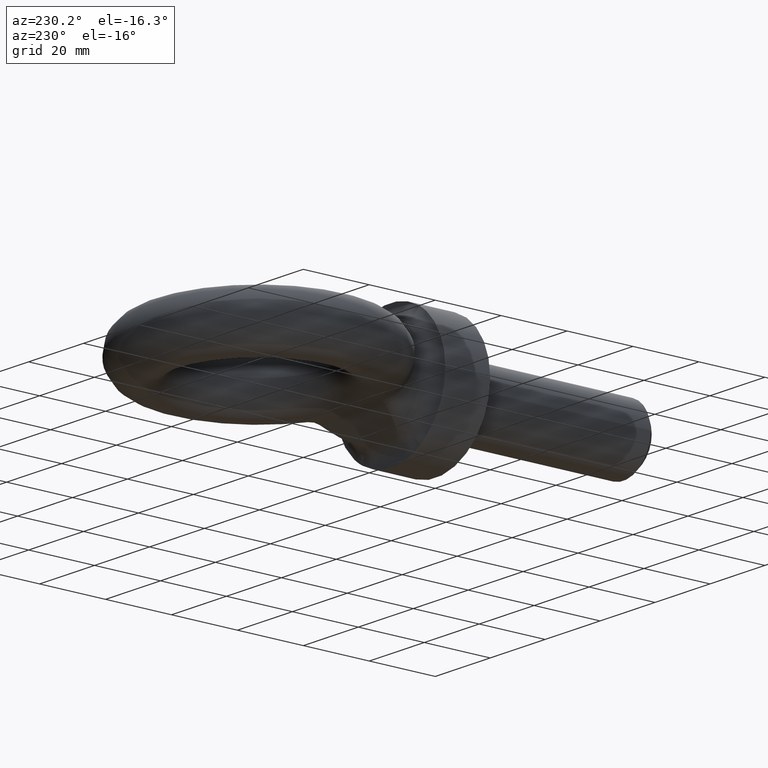
[diagram: clean part render]
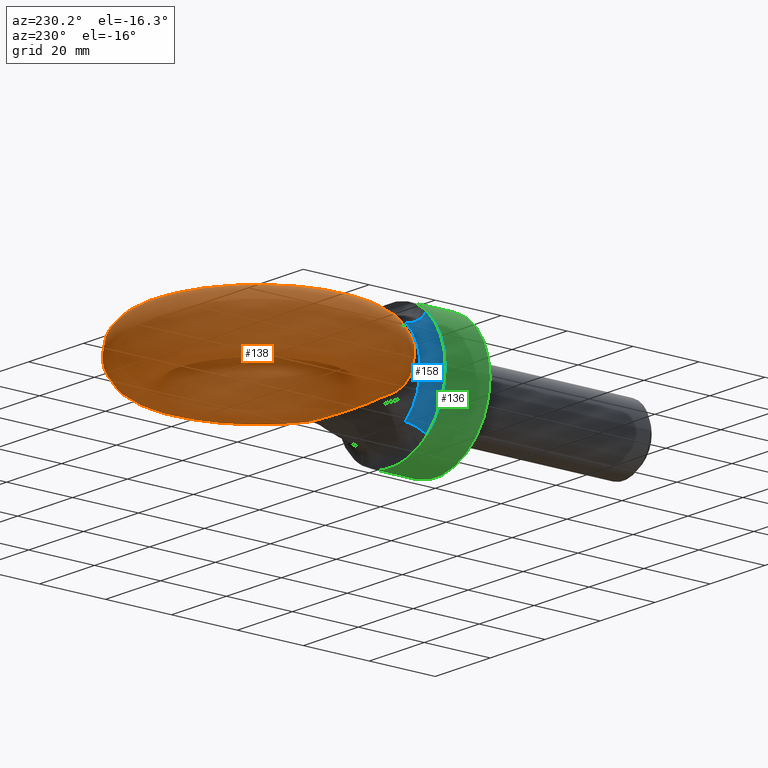
[diagram: same view with three faces highlighted in distinct colors, each labeled with its STEP entity id]
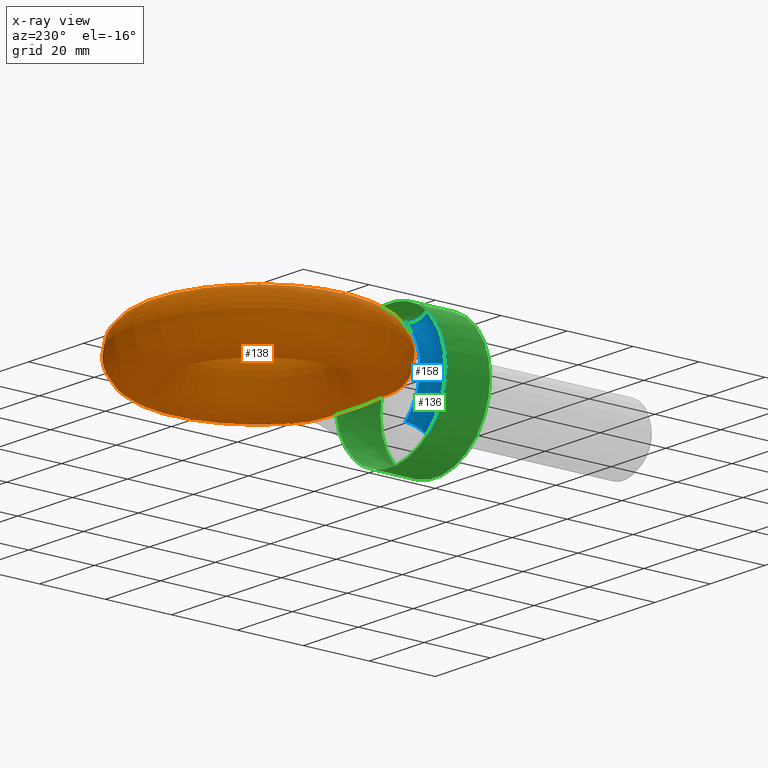
[diagram: x-ray of the same camera — body ghosted, the three highlighted faces saturated]
A machine part, auxiliary view with three faces highlighted in distinct colors.
The next image is the same camera in x-ray (body ghosted, the three faces saturated) — at least one of them is partly hidden behind the body in this view.
Their STEP definitions:

[orange] entity #138 — the highlighted toroidal blend (fillet) surface has major radius 28 mm and minor (blend) radius 8.5 mm.
#79=TOROIDAL_SURFACE('',#607,28.,8.5);
#138=ADVANCED_FACE('',(#177),#79,.T.);
#177=FACE_OUTER_BOUND('',#215,.T.);
#215=EDGE_LOOP('',(#332,#333,#334,#335,#336,#337,#338,#339));
#266=B_SPLINE_CURVE_WITH_KNOTS('',3,(#1050,#1051,#1052,#1053,#1054,#1055,
#1056,#1057,#1058,#1059),.UNSPECIFIED.,.F.,.F.,(4,2,2,2,4),(0.,0.25,0.5,
0.75,1.),.UNSPECIFIED.);
#267=B_SPLINE_CURVE_WITH_KNOTS('',3,(#1062,#1063,#1064,#1065,#1066,#1067),
 .UNSPECIFIED.,.F.,.F.,(4,2,4),(0.,0.5,1.),.UNSPECIFIED.);
#268=B_SPLINE_CURVE_WITH_KNOTS('',3,(#1069,#1070,#1071,#1072,#1073,#1074),
 .UNSPECIFIED.,.F.,.F.,(4,2,4),(0.,0.5,1.),.UNSPECIFIED.);
#269=B_SPLINE_CURVE_WITH_KNOTS('',3,(#1076,#1077,#1078,#1079,#1080,#1081),
 .UNSPECIFIED.,.F.,.F.,(4,2,4),(0.,0.5,1.),.UNSPECIFIED.);
#270=B_SPLINE_CURVE_WITH_KNOTS('',3,(#1083,#1084,#1085,#1086,#1087,#1088,
#1089,#1090,#1091,#1092),.UNSPECIFIED.,.F.,.F.,(4,2,2,2,4),(0.,0.25,0.5,
0.75,1.),.UNSPECIFIED.);
#271=B_SPLINE_CURVE_WITH_KNOTS('',3,(#1094,#1095,#1096,#1097,#1098,#1099),
 .UNSPECIFIED.,.F.,.F.,(4,2,4),(0.,0.5,1.),.UNSPECIFIED.);
#272=B_SPLINE_CURVE_WITH_KNOTS('',3,(#1101,#1102,#1103,#1104,#1105,#1106),
 .UNSPECIFIED.,.F.,.F.,(4,2,4),(0.,0.5,1.),.UNSPECIFIED.);
#273=B_SPLINE_CURVE_WITH_KNOTS('',3,(#1108,#1109,#1110,#1111,#1112,#1113),
 .UNSPECIFIED.,.F.,.F.,(4,2,4),(0.,0.5,1.),.UNSPECIFIED.);
#332=ORIENTED_EDGE('',*,*,#512,.T.);
#333=ORIENTED_EDGE('',*,*,#513,.T.);
#334=ORIENTED_EDGE('',*,*,#514,.T.);
#335=ORIENTED_EDGE('',*,*,#515,.T.);
#336=ORIENTED_EDGE('',*,*,#516,.T.);
#337=ORIENTED_EDGE('',*,*,#517,.T.);
#338=ORIENTED_EDGE('',*,*,#518,.T.);
#339=ORIENTED_EDGE('',*,*,#519,.T.);
#458=VERTEX_POINT('',#1060);
#459=VERTEX_POINT('',#1061);
#460=VERTEX_POINT('',#1068);
#461=VERTEX_POINT('',#1075);
#462=VERTEX_POINT('',#1082);
#463=VERTEX_POINT('',#1093);
#464=VERTEX_POINT('',#1100);
#465=VERTEX_POINT('',#1107);
#512=EDGE_CURVE('',#458,#459,#266,.T.);
#513=EDGE_CURVE('',#459,#460,#267,.T.);
#514=EDGE_CURVE('',#460,#461,#268,.T.);
#515=EDGE_CURVE('',#461,#462,#269,.T.);
#516=EDGE_CURVE('',#462,#463,#270,.T.);
#517=EDGE_CURVE('',#463,#464,#271,.T.);
#518=EDGE_CURVE('',#464,#465,#272,.T.);
#519=EDGE_CURVE('',#465,#458,#273,.T.);
#607=AXIS2_PLACEMENT_3D('',#1114,#703,#704);
#703=DIRECTION('',(0.,0.,-1.));
#704=DIRECTION('',(-1.,0.,0.));
#1050=CARTESIAN_POINT('',(16.1527065626072,24.8317989650207,6.97038592765761));
#1051=CARTESIAN_POINT('',(16.5958685658466,23.7898492856169,6.18485229933264));
#1052=CARTESIAN_POINT('',(17.137977679481,23.0371557646439,5.13002508564914));
#1053=CARTESIAN_POINT('',(17.9106908755622,22.034332785426,2.72525332469918));
#1054=CARTESIAN_POINT('',(18.1473949697428,21.7821572811045,1.3632933110221));
#1055=CARTESIAN_POINT('',(18.1461409546953,21.7835781414973,-1.3748120027495));
#1056=CARTESIAN_POINT('',(17.9092545312244,22.0360083275929,-2.73120740490868));
#1057=CARTESIAN_POINT('',(17.1364367350327,23.0393448592589,-5.1333309367098));
#1058=CARTESIAN_POINT('',(16.5961862641315,23.7891023226019,-6.18428915834897));
#1059=CARTESIAN_POINT('',(16.1527065626072,24.8317989650207,-6.97038592765761));
#1060=CARTESIAN_POINT('',(16.1527065626072,24.8317989650207,6.97038592765761));
#1061=CARTESIAN_POINT('',(16.1527065626072,24.8317989650207,-6.97038592765761));
#1062=CARTESIAN_POINT('',(16.1527065626072,24.8317989650207,-6.97038592765761));
#1063=CARTESIAN_POINT('',(15.8146985262855,25.6265136799712,-7.56952727378811));
#1064=CARTESIAN_POINT('',(15.0777442582695,26.3358759094344,-7.9877368372299));
#1065=CARTESIAN_POINT('',(13.2038588902143,27.1496696331708,-8.41950355260803));
#1066=CARTESIAN_POINT('',(12.1247711884099,27.2295660067419,-8.45805965133264));
#1067=CARTESIAN_POINT('',(11.0900785315639,27.0725622886254,-8.47678625931639));
#1068=CARTESIAN_POINT('',(11.0900785315639,27.0725622886254,-8.47678625931639));
#1069=CARTESIAN_POINT('',(11.0900785315639,27.0725622886254,-8.47678625931639));
#1070=CARTESIAN_POINT('',(7.41814166074653,26.5153845242014,-8.54324359992463));
#1071=CARTESIAN_POINT('',(3.70703809271567,26.3906526072406,-8.45203837462976));
#1072=CARTESIAN_POINT('',(-3.70354732903631,26.3954106091939,-8.45390329835802));
#1073=CARTESIAN_POINT('',(-7.41018415126357,26.5268647905804,-8.5450773251372));
#1074=CARTESIAN_POINT('',(-11.0834494738271,27.0972506234067,-8.47377020377814));
#1075=CARTESIAN_POINT('',(-11.0834494738271,27.0972506234067,-8.47377020377814));
#1076=CARTESIAN_POINT('',(-11.0834494738271,27.0972506234067,-8.47377020377814));
#1077=CARTESIAN_POINT('',(-12.1195670577697,27.2581392985026,-8.45365661115345));
#1078=CARTESIAN_POINT('',(-13.1939225616607,27.1853269955952,-8.41316996221665));
#1079=CARTESIAN_POINT('',(-15.0790458971959,26.3806686192468,-7.97177410197465));
#1080=CARTESIAN_POINT('',(-15.8171041027011,25.6771083404419,-7.54866070489863));
#1081=CARTESIAN_POINT('',(-16.1564254539793,24.8838611070418,-6.9431849620187));
#1082=CARTESIAN_POINT('',(-16.1564254539793,24.8838611070418,-6.9431849620187));
#1083=CARTESIAN_POINT('',(-16.1564254539793,24.8838611070418,-6.9431849620187));
#1084=CARTESIAN_POINT('',(-16.5973977309956,23.8529797981245,-6.15632608617705));
#1085=CARTESIAN_POINT('',(-17.1333303972021,23.1084991675242,-5.10415165876488));
#1086=CARTESIAN_POINT('',(-17.8968486821752,22.1168083192449,-2.70849891529755));
#1087=CARTESIAN_POINT('',(-18.1299879520686,21.8679829730238,-1.35350769796706));
#1088=CARTESIAN_POINT('',(-18.1286175254721,21.8695383483555,1.36620732587577));
#1089=CARTESIAN_POINT('',(-17.8951453889437,22.118816839118,2.71547041301445));
#1090=CARTESIAN_POINT('',(-17.1317948355831,23.11069827992,5.10733562906306));
#1091=CARTESIAN_POINT('',(-16.5977482048302,23.8521604792145,6.1557007102478));
#1092=CARTESIAN_POINT('',(-16.1564254539793,24.8838611070417,6.94318496201869));
#1093=CARTESIAN_POINT('',(-16.1564254539793,24.8838611070417,6.9431849620187));
#1094=CARTESIAN_POINT('',(-16.1564254539793,24.8838611070417,6.9431849620187));
#1095=CARTESIAN_POINT('',(-15.8176847758635,25.6757508739049,7.54762456758197));
#1096=CARTESIAN_POINT('',(-15.0778778690242,26.3807100353616,7.97177525019234));
#1097=CARTESIAN_POINT('',(-13.1985599111774,27.1838038686131,8.41235598083391));
#1098=CARTESIAN_POINT('',(-12.1185890799281,27.2579874377856,8.45367559611057));
#1099=CARTESIAN_POINT('',(-11.0834494738271,27.0972506234067,8.47377020377814));
#1100=CARTESIAN_POINT('',(-11.0834494738271,27.0972506234067,8.47377020377814));
#1101=CARTESIAN_POINT('',(-11.0834494738271,27.0972506234067,8.47377020377814));
#1102=CARTESIAN_POINT('',(-7.41244585750112,26.5272159890599,8.54503341985212));
#1103=CARTESIAN_POINT('',(-3.70024841403242,26.3952994225095,8.45385973390929));
#1104=CARTESIAN_POINT('',(3.71125843764678,26.3907590768588,8.45208009018339));
#1105=CARTESIAN_POINT('',(7.4109335032542,26.5142907621847,8.54337405831607));
#1106=CARTESIAN_POINT('',(11.0900785315639,27.0725622886254,8.47678625931638));
#1107=CARTESIAN_POINT('',(11.0900785315639,27.0725622886254,8.47678625931638));
#1108=CARTESIAN_POINT('',(11.0900785315639,27.0725622886254,8.47678625931638));
#1109=CARTESIAN_POINT('',(12.1243702519471,27.2295051688544,8.4580669077676));
#1110=CARTESIAN_POINT('',(13.1958796928499,27.151665835998,8.42047719780688));
#1111=CARTESIAN_POINT('',(15.0746724157141,26.3386703499726,7.98930441477021));
#1112=CARTESIAN_POINT('',(15.8144890778384,25.6270061290997,7.56989853485605));
#1113=CARTESIAN_POINT('',(16.1527065626072,24.8317989650207,6.97038592765761));
#1114=CARTESIAN_POINT('',(0.0837289890841773,53.5,0.));

[blue] entity #158 — the highlighted toroidal blend (fillet) surface has major radius 20.25 mm and minor (blend) radius 4.25 mm.
#81=TOROIDAL_SURFACE('',#631,20.25,4.25);
#158=ADVANCED_FACE('',(#197),#81,.F.);
#197=FACE_OUTER_BOUND('',#235,.T.);
#235=EDGE_LOOP('',(#416,#417,#418,#419));
#416=ORIENTED_EDGE('',*,*,#538,.T.);
#417=ORIENTED_EDGE('',*,*,#503,.F.);
#418=ORIENTED_EDGE('',*,*,#539,.T.);
#419=ORIENTED_EDGE('',*,*,#475,.F.);
#431=VERTEX_POINT('',#791);
#432=VERTEX_POINT('',#793);
#450=VERTEX_POINT('',#1025);
#451=VERTEX_POINT('',#1027);
#475=EDGE_CURVE('',#431,#432,#542,.T.);
#503=EDGE_CURVE('',#450,#451,#548,.T.);
#538=EDGE_CURVE('',#431,#451,#572,.T.);
#539=EDGE_CURVE('',#450,#432,#573,.T.);
#542=CIRCLE('',#582,16.);
#548=CIRCLE('',#599,20.);
#572=CIRCLE('',#629,4.25);
#573=CIRCLE('',#630,4.25);
#582=AXIS2_PLACEMENT_3D('',#792,#650,#651);
#599=AXIS2_PLACEMENT_3D('',#1026,#686,#687);
#629=AXIS2_PLACEMENT_3D('',#1376,#747,#748);
#630=AXIS2_PLACEMENT_3D('',#1389,#749,#750);
#631=AXIS2_PLACEMENT_3D('',#1402,#751,#752);
#650=DIRECTION('',(-3.24990602193221E-18,1.,0.));
#651=DIRECTION('',(1.,0.,0.));
#686=DIRECTION('',(3.24990602193221E-18,-1.,0.));
#687=DIRECTION('',(-1.,0.,0.));
#747=DIRECTION('',(0.752303682594455,1.58543666706691E-16,-0.658816491259002));
#748=DIRECTION('',(-0.658816491259001,0.,-0.752303682594455));
#749=DIRECTION('',(0.752303682594454,1.17439753116067E-16,0.658816491259002));
#750=DIRECTION('',(0.658816491259002,0.,-0.752303682594454));
#751=DIRECTION('',(3.24990602193221E-18,-1.,0.));
#752=DIRECTION('',(1.,0.,0.));
#791=CARTESIAN_POINT('',(-10.541063860144,17.8426406871193,-12.0368589215113));
#792=CARTESIAN_POINT('',(2.48856981430297E-17,17.8426406871193,0.));
#793=CARTESIAN_POINT('',(-10.541063860144,17.8426406871193,12.0368589215113));
#1025=CARTESIAN_POINT('',(-13.17632982518,13.6,15.0460736518891));
#1026=CARTESIAN_POINT('',(3.86738816609933E-17,13.6,0.));
#1027=CARTESIAN_POINT('',(-13.17632982518,13.6,-15.0460736518891));
#1376=CARTESIAN_POINT('',(-13.3410339479948,17.8426406871193,-15.2341495725377));
#1389=CARTESIAN_POINT('',(-13.3410339479948,17.8426406871193,15.2341495725377));
#1402=CARTESIAN_POINT('',(2.48856981430297E-17,17.8426406871193,0.));

[green] entity #136 — the highlighted cylindrical surface (bore or boss wall) has radius 20 mm, axis along (-0, 1, 0).
#86=FACE_BOUND('',#212,.T.);
#87=FACE_BOUND('',#213,.T.);
#113=CYLINDRICAL_SURFACE('',#605,20.);
#136=ADVANCED_FACE('',(#86,#87),#113,.T.);
#212=EDGE_LOOP('',(#319,#320,#321,#322,#323,#324,#325,#326));
#213=EDGE_LOOP('',(#327));
#319=ORIENTED_EDGE('',*,*,#502,.T.);
#320=ORIENTED_EDGE('',*,*,#503,.T.);
#321=ORIENTED_EDGE('',*,*,#504,.F.);
#322=ORIENTED_EDGE('',*,*,#505,.F.);
#323=ORIENTED_EDGE('',*,*,#506,.F.);
#324=ORIENTED_EDGE('',*,*,#507,.F.);
#325=ORIENTED_EDGE('',*,*,#508,.T.);
#326=ORIENTED_EDGE('',*,*,#466,.F.);
#327=ORIENTED_EDGE('',*,*,#501,.T.);
#422=VERTEX_POINT('',#757);
#423=VERTEX_POINT('',#758);
#449=VERTEX_POINT('',#1022);
#450=VERTEX_POINT('',#1025);
#451=VERTEX_POINT('',#1027);
#452=VERTEX_POINT('',#1029);
#453=VERTEX_POINT('',#1031);
#454=VERTEX_POINT('',#1033);
#455=VERTEX_POINT('',#1035);
#466=EDGE_CURVE('',#422,#423,#540,.T.);
#501=EDGE_CURVE('',#449,#449,#546,.T.);
#502=EDGE_CURVE('',#422,#450,#547,.T.);
#503=EDGE_CURVE('',#450,#451,#548,.T.);
#504=EDGE_CURVE('',#452,#451,#549,.T.);
#505=EDGE_CURVE('',#453,#452,#550,.T.);
#506=EDGE_CURVE('',#454,#453,#551,.T.);
#507=EDGE_CURVE('',#455,#454,#552,.T.);
#508=EDGE_CURVE('',#455,#423,#553,.T.);
#540=CIRCLE('',#575,20.);
#546=CIRCLE('',#596,20.);
#547=CIRCLE('',#598,20.);
#548=CIRCLE('',#599,20.);
#549=CIRCLE('',#600,20.);
#550=CIRCLE('',#601,20.);
#551=CIRCLE('',#602,20.);
#552=CIRCLE('',#603,20.);
#553=CIRCLE('',#604,20.);
#575=AXIS2_PLACEMENT_3D('',#756,#635,#636);
#596=AXIS2_PLACEMENT_3D('',#1021,#680,#681);
#598=AXIS2_PLACEMENT_3D('',#1024,#684,#685);
#599=AXIS2_PLACEMENT_3D('',#1026,#686,#687);
#600=AXIS2_PLACEMENT_3D('',#1028,#688,#689);
#601=AXIS2_PLACEMENT_3D('',#1030,#690,#691);
#602=AXIS2_PLACEMENT_3D('',#1032,#692,#693);
#603=AXIS2_PLACEMENT_3D('',#1034,#694,#695);
#604=AXIS2_PLACEMENT_3D('',#1036,#696,#697);
#605=AXIS2_PLACEMENT_3D('',#1037,#698,#699);
#635=DIRECTION('',(-3.24990602193221E-18,1.,0.));
#636=DIRECTION('',(-1.,0.,0.));
#680=DIRECTION('',(-3.24990602193221E-18,1.,0.));
#681=DIRECTION('',(-1.,-3.24990602193221E-18,0.));
#684=DIRECTION('',(3.24990602193221E-18,-1.,0.));
#685=DIRECTION('',(-1.,0.,0.));
#686=DIRECTION('',(3.24990602193221E-18,-1.,0.));
#687=DIRECTION('',(-1.,0.,0.));
#688=DIRECTION('',(-3.24990602193221E-18,1.,0.));
#689=DIRECTION('',(-1.,0.,0.));
#690=DIRECTION('',(-3.24990602193221E-18,1.,0.));
#691=DIRECTION('',(-1.,0.,0.));
#692=DIRECTION('',(-3.24990602193221E-18,1.,0.));
#693=DIRECTION('',(-1.,0.,0.));
#694=DIRECTION('',(-3.24990602193221E-18,1.,0.));
#695=DIRECTION('',(-1.,0.,0.));
#696=DIRECTION('',(3.24990602193221E-18,-1.,0.));
#697=DIRECTION('',(-1.,0.,0.));
#698=DIRECTION('',(-3.24990602193221E-18,1.,0.));
#699=DIRECTION('',(-1.,0.,0.));
#756=CARTESIAN_POINT('',(3.86738816609933E-17,13.6,0.));
#757=CARTESIAN_POINT('',(-10.1114567226662,13.6,17.2556785709994));
#758=CARTESIAN_POINT('',(10.1114567226662,13.6,17.2556785709994));
#1021=CARTESIAN_POINT('',(8.28726035592713E-17,0.,0.));
#1022=CARTESIAN_POINT('',(-20.,-6.49981204386442E-17,0.));
#1024=CARTESIAN_POINT('',(3.86738816609933E-17,13.6,0.));
#1025=CARTESIAN_POINT('',(-13.17632982518,13.6,15.0460736518891));
#1026=CARTESIAN_POINT('',(3.86738816609933E-17,13.6,0.));
#1027=CARTESIAN_POINT('',(-13.17632982518,13.6,-15.0460736518891));
#1028=CARTESIAN_POINT('',(3.86738816609933E-17,13.6,0.));
#1029=CARTESIAN_POINT('',(-10.1114567226662,13.6,-17.2556785709994));
#1030=CARTESIAN_POINT('',(3.86738816609933E-17,13.6,0.));
#1031=CARTESIAN_POINT('',(10.1114567226662,13.6,-17.2556785709994));
#1032=CARTESIAN_POINT('',(3.86738816609933E-17,13.6,0.));
#1033=CARTESIAN_POINT('',(13.17632982518,13.6,-15.0460736518891));
#1034=CARTESIAN_POINT('',(3.86738816609933E-17,13.6,0.));
#1035=CARTESIAN_POINT('',(13.17632982518,13.6,15.0460736518891));
#1036=CARTESIAN_POINT('',(3.86738816609933E-17,13.6,0.));
#1037=CARTESIAN_POINT('',(2.74617058853272E-16,-59.,0.));